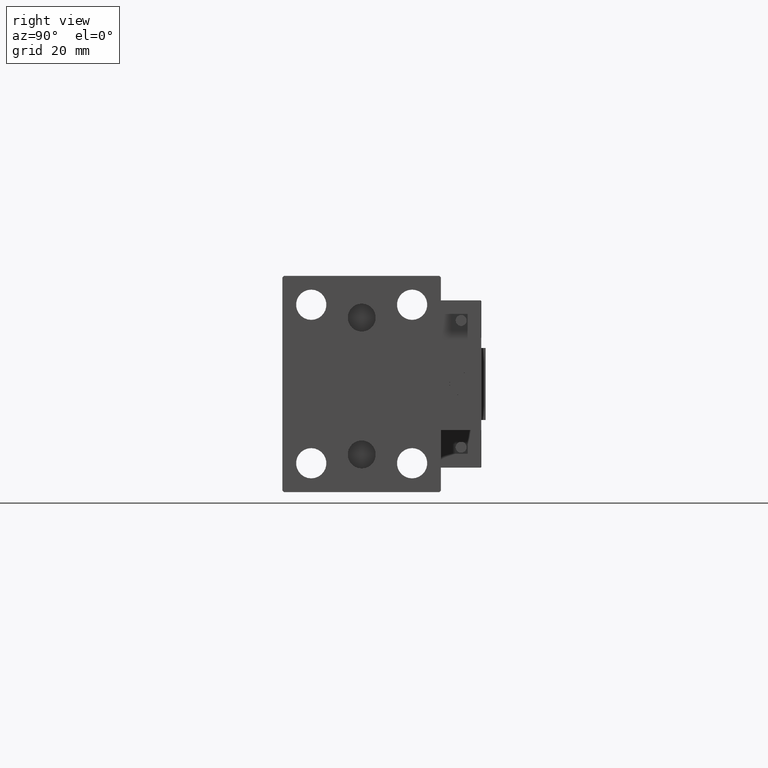
[diagram: clean part render]
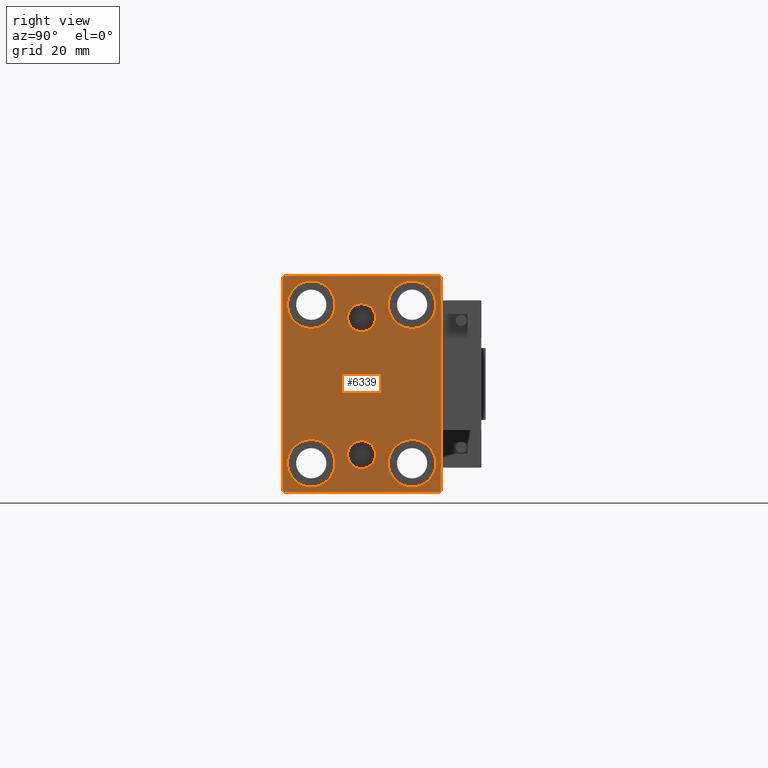
[diagram: same view with one face highlighted and labeled with its STEP entity id]
A machine part, right view. The second image highlights one B-rep face of the part: STEP entity #6339.
In plain terms, the highlighted planar face has unit normal (1, 0, 0).
Its self-contained STEP definition (entity closure, byte-faithful):
#363 = CARTESIAN_POINT ( 'NONE',  ( 105.0000000000000000, 3.000384657911015074E-15, -24.49999999999999289 ) ) ;
#397 = CIRCLE ( 'NONE', #37847, 8.250000000000000000 ) ;
#482 = DIRECTION ( 'NONE',  ( 0.000000000000000000, 0.000000000000000000, 1.000000000000000000 ) ) ;
#554 = VECTOR ( 'NONE', #2181, 1000.000000000000000 ) ;
#1062 = VERTEX_POINT ( 'NONE', #13908 ) ;
#1823 = PLANE ( 'NONE',  #20879 ) ;
#1980 = ORIENTED_EDGE ( 'NONE', *, *, #5644, .T. ) ;
#2181 = DIRECTION ( 'NONE',  ( -0.000000000000000000, 0.7071067811865378028, -0.7071067811865573427 ) ) ;
#2345 = CARTESIAN_POINT ( 'NONE',  ( 105.0000000000000000, 0.000000000000000000, 0.000000000000000000 ) ) ;
#2765 = CARTESIAN_POINT ( 'NONE',  ( 105.0000000000000000, 17.50000000000000355, 35.74999999999999289 ) ) ;
#3150 = VERTEX_POINT ( 'NONE', #2765 ) ;
#3209 = CIRCLE ( 'NONE', #10002, 8.249999999999992895 ) ;
#3281 = DIRECTION ( 'NONE',  ( 0.000000000000000000, 0.000000000000000000, -1.000000000000000000 ) ) ;
#3358 = EDGE_LOOP ( 'NONE', ( #30642, #46702, #46843, #23762, #52089, #1980, #43072, #36636 ) ) ;
#3813 = CARTESIAN_POINT ( 'NONE',  ( 105.0000000000000000, -3.571693674697836683E-15, 23.00000000000000711 ) ) ;
#4095 = AXIS2_PLACEMENT_3D ( 'NONE', #363, #16615, #8629 ) ;
#4743 = CARTESIAN_POINT ( 'NONE',  ( 105.0000000000000000, 26.99999999999999645, 37.50000000000000711 ) ) ;
#5498 = VERTEX_POINT ( 'NONE', #33206 ) ;
#5644 = EDGE_CURVE ( 'NONE', #49841, #22317, #51789, .T. ) ;
#5906 = CARTESIAN_POINT ( 'NONE',  ( 105.0000000000000000, 27.50000000000000355, -36.99999999999998579 ) ) ;
#6065 = LINE ( 'NONE', #26566, #10058 ) ;
#6068 = CARTESIAN_POINT ( 'NONE',  ( 105.0000000000000000, -17.49999999999999645, 35.74999999999999289 ) ) ;
#6339 = ADVANCED_FACE ( 'NONE', ( #41278, #24771, #41016, #20773, #37017, #22079, #38319 ), #1823, .T. ) ;
#6846 = EDGE_LOOP ( 'NONE', ( #25124, #7712 ) ) ;
#7606 = CARTESIAN_POINT ( 'NONE',  ( 105.0000000000000000, 27.49999999999999645, 37.50000000000000711 ) ) ;
#7712 = ORIENTED_EDGE ( 'NONE', *, *, #50715, .T. ) ;
#8629 = DIRECTION ( 'NONE',  ( 0.000000000000000000, 0.000000000000000000, 1.000000000000000000 ) ) ;
#8722 = VERTEX_POINT ( 'NONE', #6068 ) ;
#9388 = VERTEX_POINT ( 'NONE', #39969 ) ;
#9913 = CARTESIAN_POINT ( 'NONE',  ( 105.0000000000000000, -32.25000000000038369, -32.24999999999949551 ) ) ;
#10002 = AXIS2_PLACEMENT_3D ( 'NONE', #42848, #47664, #18343 ) ;
#10058 = VECTOR ( 'NONE', #17794, 1000.000000000000000 ) ;
#10101 = VECTOR ( 'NONE', #27962, 1000.000000000000000 ) ;
#10222 = CARTESIAN_POINT ( 'NONE',  ( 105.0000000000000000, -17.49999999999999645, 27.49999999999999645 ) ) ;
#11260 = VERTEX_POINT ( 'NONE', #26939 ) ;
#11264 = DIRECTION ( 'NONE',  ( 0.000000000000000000, 0.000000000000000000, 1.000000000000000000 ) ) ;
#11613 = DIRECTION ( 'NONE',  ( 0.000000000000000000, 0.000000000000000000, 1.000000000000000000 ) ) ;
#11994 = EDGE_CURVE ( 'NONE', #34610, #24769, #15152, .T. ) ;
#12141 = VERTEX_POINT ( 'NONE', #40275 ) ;
#12296 = AXIS2_PLACEMENT_3D ( 'NONE', #10222, #22741, #38983 ) ;
#12326 = DIRECTION ( 'NONE',  ( 1.000000000000000000, 0.000000000000000000, 0.000000000000000000 ) ) ;
#12753 = EDGE_CURVE ( 'NONE', #22222, #15169, #6065, .T. ) ;
#13171 = AXIS2_PLACEMENT_3D ( 'NONE', #20624, #32608, #21150 ) ;
#13604 = EDGE_CURVE ( 'NONE', #30407, #49841, #35425, .T. ) ;
#13825 = AXIS2_PLACEMENT_3D ( 'NONE', #30460, #50219, #17956 ) ;
#13908 = CARTESIAN_POINT ( 'NONE',  ( 105.0000000000000000, -17.49999999999999645, 19.25000000000000000 ) ) ;
#14725 = EDGE_LOOP ( 'NONE', ( #46953, #36856 ) ) ;
#15043 = ORIENTED_EDGE ( 'NONE', *, *, #42931, .T. ) ;
#15152 = CIRCLE ( 'NONE', #4095, 4.859999999999999432 ) ;
#15169 = VERTEX_POINT ( 'NONE', #4743 ) ;
#15178 = DIRECTION ( 'NONE',  ( -1.000000000000000000, -0.000000000000000000, -0.000000000000000000 ) ) ;
#15578 = DIRECTION ( 'NONE',  ( 0.000000000000000000, -1.000000000000000000, -1.261617073437677999E-16 ) ) ;
#15658 = DIRECTION ( 'NONE',  ( 0.000000000000000000, 0.000000000000000000, 1.000000000000000000 ) ) ;
#15705 = DIRECTION ( 'NONE',  ( 0.000000000000000000, -9.251858538542970348E-17, 1.000000000000000000 ) ) ;
#16405 = AXIS2_PLACEMENT_3D ( 'NONE', #39502, #20059, #11264 ) ;
#16615 = DIRECTION ( 'NONE',  ( 1.000000000000000000, 0.000000000000000000, -0.000000000000000000 ) ) ;
#16647 = EDGE_CURVE ( 'NONE', #22317, #22222, #41119, .T. ) ;
#17463 = CARTESIAN_POINT ( 'NONE',  ( 105.0000000000000000, 3.000384657911015074E-15, -29.35999999999999233 ) ) ;
#17535 = EDGE_CURVE ( 'NONE', #12141, #36785, #37785, .T. ) ;
#17727 = VECTOR ( 'NONE', #15705, 1000.000000000000000 ) ;
#17794 = DIRECTION ( 'NONE',  ( -0.000000000000000000, -0.7071067811865524577, 0.7071067811865426878 ) ) ;
#17956 = DIRECTION ( 'NONE',  ( 0.000000000000000000, 0.000000000000000000, 1.000000000000000000 ) ) ;
#18343 = DIRECTION ( 'NONE',  ( 0.000000000000000000, 0.000000000000000000, 1.000000000000000000 ) ) ;
#18507 = EDGE_CURVE ( 'NONE', #24307, #30684, #42482, .T. ) ;
#19811 = DIRECTION ( 'NONE',  ( -1.000000000000000000, -0.000000000000000000, -0.000000000000000000 ) ) ;
#20059 = DIRECTION ( 'NONE',  ( -1.000000000000000000, -0.000000000000000000, -0.000000000000000000 ) ) ;
#20150 = VERTEX_POINT ( 'NONE', #37467 ) ;
#20355 = CARTESIAN_POINT ( 'NONE',  ( 105.0000000000000000, -17.50000000000000355, -35.75000000000000711 ) ) ;
#20624 = CARTESIAN_POINT ( 'NONE',  ( 105.0000000000000000, -3.571693674697836683E-15, 23.00000000000000711 ) ) ;
#20773 = FACE_BOUND ( 'NONE', #6846, .T. ) ;
#20879 = AXIS2_PLACEMENT_3D ( 'NONE', #2345, #39103, #34845 ) ;
#21150 = DIRECTION ( 'NONE',  ( 0.000000000000000000, 0.000000000000000000, -1.000000000000000000 ) ) ;
#21376 = CARTESIAN_POINT ( 'NONE',  ( 105.0000000000000000, -2.976515330312223406E-15, 27.86000000000000654 ) ) ;
#21402 = LINE ( 'NONE', #37646, #25496 ) ;
#21846 = ORIENTED_EDGE ( 'NONE', *, *, #36538, .T. ) ;
#21885 = EDGE_CURVE ( 'NONE', #24769, #34610, #48694, .T. ) ;
#22043 = EDGE_LOOP ( 'NONE', ( #32254, #27243 ) ) ;
#22079 = FACE_BOUND ( 'NONE', #22043, .T. ) ;
#22222 = VERTEX_POINT ( 'NONE', #36841 ) ;
#22274 = VERTEX_POINT ( 'NONE', #21376 ) ;
#22317 = VERTEX_POINT ( 'NONE', #5906 ) ;
#22741 = DIRECTION ( 'NONE',  ( -1.000000000000000000, -0.000000000000000000, -0.000000000000000000 ) ) ;
#22876 = VECTOR ( 'NONE', #34831, 1000.000000000000000 ) ;
#22921 = CARTESIAN_POINT ( 'NONE',  ( 105.0000000000000000, 3.595563002296627957E-15, -19.63999999999999346 ) ) ;
#23230 = CIRCLE ( 'NONE', #16405, 8.250000000000000000 ) ;
#23762 = ORIENTED_EDGE ( 'NONE', *, *, #39547, .T. ) ;
#23926 = CARTESIAN_POINT ( 'NONE',  ( 105.0000000000000000, -17.50000000000000355, -27.50000000000000355 ) ) ;
#24136 = CARTESIAN_POINT ( 'NONE',  ( 105.0000000000000000, 26.99999999999998934, -37.50000000000000000 ) ) ;
#24254 = CIRCLE ( 'NONE', #29321, 4.859999999999999432 ) ;
#24307 = VERTEX_POINT ( 'NONE', #20355 ) ;
#24769 = VERTEX_POINT ( 'NONE', #17463 ) ;
#24771 = FACE_BOUND ( 'NONE', #14725, .T. ) ;
#25124 = ORIENTED_EDGE ( 'NONE', *, *, #36504, .T. ) ;
#25496 = VECTOR ( 'NONE', #33645, 1000.000000000000114 ) ;
#26566 = CARTESIAN_POINT ( 'NONE',  ( 105.0000000000000000, 32.24999999999981526, 32.25000000000025580 ) ) ;
#26939 = CARTESIAN_POINT ( 'NONE',  ( 105.0000000000000000, -3.571693674697836683E-15, 18.14000000000000767 ) ) ;
#27243 = ORIENTED_EDGE ( 'NONE', *, *, #34669, .T. ) ;
#27618 = EDGE_CURVE ( 'NONE', #3150, #20150, #33373, .T. ) ;
#27687 = CARTESIAN_POINT ( 'NONE',  ( 105.0000000000000000, 27.50000000000000355, -37.50000000000000000 ) ) ;
#27962 = DIRECTION ( 'NONE',  ( 0.000000000000000000, 1.000000000000000000, 0.000000000000000000 ) ) ;
#28252 = AXIS2_PLACEMENT_3D ( 'NONE', #48132, #51879, #11613 ) ;
#28312 = EDGE_LOOP ( 'NONE', ( #21846, #36468 ) ) ;
#28508 = VECTOR ( 'NONE', #34965, 1000.000000000000114 ) ;
#29321 = AXIS2_PLACEMENT_3D ( 'NONE', #3813, #12326, #3281 ) ;
#30407 = VERTEX_POINT ( 'NONE', #46685 ) ;
#30460 = CARTESIAN_POINT ( 'NONE',  ( 105.0000000000000000, 17.50000000000000355, 27.49999999999999645 ) ) ;
#30569 = CARTESIAN_POINT ( 'NONE',  ( 105.0000000000000000, -27.50000000000000355, 37.50000000000000000 ) ) ;
#30642 = ORIENTED_EDGE ( 'NONE', *, *, #31732, .T. ) ;
#30684 = VERTEX_POINT ( 'NONE', #33818 ) ;
#30960 = VECTOR ( 'NONE', #15578, 1000.000000000000000 ) ;
#31732 = EDGE_CURVE ( 'NONE', #15169, #40556, #35825, .T. ) ;
#31962 = CARTESIAN_POINT ( 'NONE',  ( 105.0000000000000000, -27.50000000000000355, -37.50000000000000000 ) ) ;
#32135 = EDGE_LOOP ( 'NONE', ( #42087, #40969 ) ) ;
#32254 = ORIENTED_EDGE ( 'NONE', *, *, #18507, .T. ) ;
#32608 = DIRECTION ( 'NONE',  ( 1.000000000000000000, 0.000000000000000000, 0.000000000000000000 ) ) ;
#32744 = EDGE_CURVE ( 'NONE', #9388, #5498, #23230, .T. ) ;
#33206 = CARTESIAN_POINT ( 'NONE',  ( 105.0000000000000000, 17.49999999999999645, -35.75000000000000711 ) ) ;
#33373 = CIRCLE ( 'NONE', #13825, 8.249999999999992895 ) ;
#33645 = DIRECTION ( 'NONE',  ( 0.000000000000000000, -0.7071067811865474617, -0.7071067811865474617 ) ) ;
#33818 = CARTESIAN_POINT ( 'NONE',  ( 105.0000000000000000, -17.50000000000000355, -19.25000000000000355 ) ) ;
#33892 = LINE ( 'NONE', #9913, #554 ) ;
#33958 = CARTESIAN_POINT ( 'NONE',  ( 105.0000000000000000, -27.00000000000000355, 37.50000000000000000 ) ) ;
#34144 = CARTESIAN_POINT ( 'NONE',  ( 105.0000000000000000, -27.50000000000000355, -37.00000000000000000 ) ) ;
#34479 = CARTESIAN_POINT ( 'NONE',  ( 105.0000000000000000, -17.49999999999999645, 27.49999999999999645 ) ) ;
#34610 = VERTEX_POINT ( 'NONE', #22921 ) ;
#34632 = DIRECTION ( 'NONE',  ( 0.000000000000000000, 0.000000000000000000, 1.000000000000000000 ) ) ;
#34669 = EDGE_CURVE ( 'NONE', #30684, #24307, #42875, .T. ) ;
#34831 = DIRECTION ( 'NONE',  ( 0.000000000000000000, 0.000000000000000000, -1.000000000000000000 ) ) ;
#34845 = DIRECTION ( 'NONE',  ( 0.000000000000000000, 0.000000000000000000, -1.000000000000000000 ) ) ;
#34965 = DIRECTION ( 'NONE',  ( -0.000000000000000000, 0.7071067811865474617, 0.7071067811865474617 ) ) ;
#35258 = CIRCLE ( 'NONE', #12296, 8.249999999999992895 ) ;
#35425 = LINE ( 'NONE', #31962, #10101 ) ;
#35825 = LINE ( 'NONE', #7606, #30960 ) ;
#36065 = AXIS2_PLACEMENT_3D ( 'NONE', #43972, #15178, #34632 ) ;
#36168 = DIRECTION ( 'NONE',  ( -1.000000000000000000, -0.000000000000000000, -0.000000000000000000 ) ) ;
#36468 = ORIENTED_EDGE ( 'NONE', *, *, #32744, .T. ) ;
#36504 = EDGE_CURVE ( 'NONE', #1062, #8722, #35258, .T. ) ;
#36532 = AXIS2_PLACEMENT_3D ( 'NONE', #23926, #36168, #15658 ) ;
#36538 = EDGE_CURVE ( 'NONE', #5498, #9388, #397, .T. ) ;
#36622 = EDGE_CURVE ( 'NONE', #22274, #11260, #24254, .T. ) ;
#36636 = ORIENTED_EDGE ( 'NONE', *, *, #12753, .T. ) ;
#36785 = VERTEX_POINT ( 'NONE', #34144 ) ;
#36841 = CARTESIAN_POINT ( 'NONE',  ( 105.0000000000000000, 27.49999999999999645, 37.00000000000001421 ) ) ;
#36856 = ORIENTED_EDGE ( 'NONE', *, *, #11994, .F. ) ;
#37005 = EDGE_CURVE ( 'NONE', #11260, #22274, #46360, .T. ) ;
#37017 = FACE_BOUND ( 'NONE', #44202, .T. ) ;
#37287 = ORIENTED_EDGE ( 'NONE', *, *, #27618, .T. ) ;
#37467 = CARTESIAN_POINT ( 'NONE',  ( 105.0000000000000000, 17.50000000000000355, 19.25000000000000000 ) ) ;
#37646 = CARTESIAN_POINT ( 'NONE',  ( 105.0000000000000000, -32.25000000000000000, 32.25000000000000000 ) ) ;
#37785 = LINE ( 'NONE', #30569, #22876 ) ;
#37847 = AXIS2_PLACEMENT_3D ( 'NONE', #39781, #19811, #48580 ) ;
#38204 = CIRCLE ( 'NONE', #51864, 8.249999999999992895 ) ;
#38319 = FACE_OUTER_BOUND ( 'NONE', #3358, .T. ) ;
#38983 = DIRECTION ( 'NONE',  ( 0.000000000000000000, 0.000000000000000000, 1.000000000000000000 ) ) ;
#39103 = DIRECTION ( 'NONE',  ( 1.000000000000000000, 0.000000000000000000, 0.000000000000000000 ) ) ;
#39493 = CARTESIAN_POINT ( 'NONE',  ( 105.0000000000000000, 32.24999999999999289, -32.24999999999999289 ) ) ;
#39502 = CARTESIAN_POINT ( 'NONE',  ( 105.0000000000000000, 17.49999999999999645, -27.50000000000000355 ) ) ;
#39547 = EDGE_CURVE ( 'NONE', #36785, #30407, #33892, .T. ) ;
#39781 = CARTESIAN_POINT ( 'NONE',  ( 105.0000000000000000, 17.49999999999999645, -27.50000000000000355 ) ) ;
#39969 = CARTESIAN_POINT ( 'NONE',  ( 105.0000000000000000, 17.49999999999999645, -19.25000000000000355 ) ) ;
#40275 = CARTESIAN_POINT ( 'NONE',  ( 105.0000000000000000, -27.50000000000000355, 37.00000000000000000 ) ) ;
#40556 = VERTEX_POINT ( 'NONE', #33958 ) ;
#40969 = ORIENTED_EDGE ( 'NONE', *, *, #36622, .F. ) ;
#41016 = FACE_BOUND ( 'NONE', #28312, .T. ) ;
#41119 = LINE ( 'NONE', #27687, #17727 ) ;
#41278 = FACE_BOUND ( 'NONE', #32135, .T. ) ;
#42087 = ORIENTED_EDGE ( 'NONE', *, *, #37005, .F. ) ;
#42482 = CIRCLE ( 'NONE', #36532, 8.250000000000000000 ) ;
#42848 = CARTESIAN_POINT ( 'NONE',  ( 105.0000000000000000, 17.50000000000000355, 27.49999999999999645 ) ) ;
#42875 = CIRCLE ( 'NONE', #36065, 8.250000000000000000 ) ;
#42931 = EDGE_CURVE ( 'NONE', #20150, #3150, #3209, .T. ) ;
#43072 = ORIENTED_EDGE ( 'NONE', *, *, #16647, .T. ) ;
#43972 = CARTESIAN_POINT ( 'NONE',  ( 105.0000000000000000, -17.50000000000000355, -27.50000000000000355 ) ) ;
#44202 = EDGE_LOOP ( 'NONE', ( #15043, #37287 ) ) ;
#46360 = CIRCLE ( 'NONE', #13171, 4.859999999999999432 ) ;
#46685 = CARTESIAN_POINT ( 'NONE',  ( 105.0000000000000000, -27.00000000000001776, -37.50000000000000000 ) ) ;
#46702 = ORIENTED_EDGE ( 'NONE', *, *, #52050, .T. ) ;
#46843 = ORIENTED_EDGE ( 'NONE', *, *, #17535, .T. ) ;
#46953 = ORIENTED_EDGE ( 'NONE', *, *, #21885, .F. ) ;
#47664 = DIRECTION ( 'NONE',  ( -1.000000000000000000, -0.000000000000000000, -0.000000000000000000 ) ) ;
#48132 = CARTESIAN_POINT ( 'NONE',  ( 105.0000000000000000, 3.000384657911015074E-15, -24.49999999999999289 ) ) ;
#48580 = DIRECTION ( 'NONE',  ( 0.000000000000000000, 0.000000000000000000, 1.000000000000000000 ) ) ;
#48694 = CIRCLE ( 'NONE', #28252, 4.859999999999999432 ) ;
#49841 = VERTEX_POINT ( 'NONE', #24136 ) ;
#50219 = DIRECTION ( 'NONE',  ( -1.000000000000000000, -0.000000000000000000, -0.000000000000000000 ) ) ;
#50501 = DIRECTION ( 'NONE',  ( -1.000000000000000000, -0.000000000000000000, -0.000000000000000000 ) ) ;
#50715 = EDGE_CURVE ( 'NONE', #8722, #1062, #38204, .T. ) ;
#51789 = LINE ( 'NONE', #39493, #28508 ) ;
#51864 = AXIS2_PLACEMENT_3D ( 'NONE', #34479, #50501, #482 ) ;
#51879 = DIRECTION ( 'NONE',  ( 1.000000000000000000, 0.000000000000000000, -0.000000000000000000 ) ) ;
#52050 = EDGE_CURVE ( 'NONE', #40556, #12141, #21402, .T. ) ;
#52089 = ORIENTED_EDGE ( 'NONE', *, *, #13604, .T. ) ;